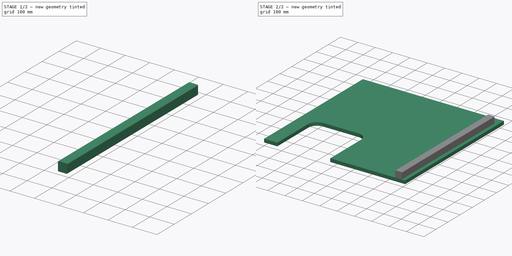
[diagram: build sequence overview — one tinted view per stage of 2, left to right]
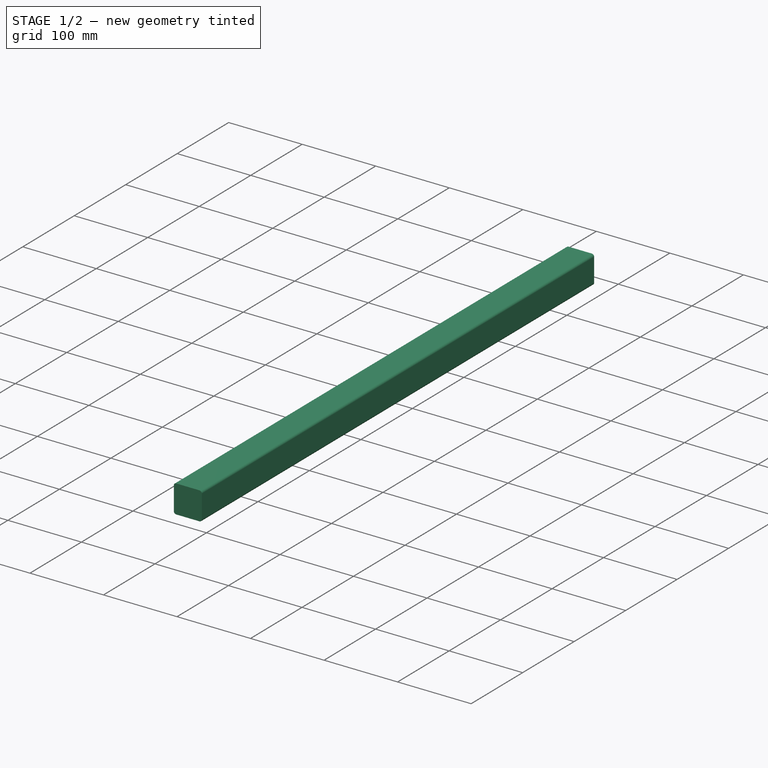
[diagram: stage 1 of 2 — iso view after this stage's code; geometry added in this stage tinted green]
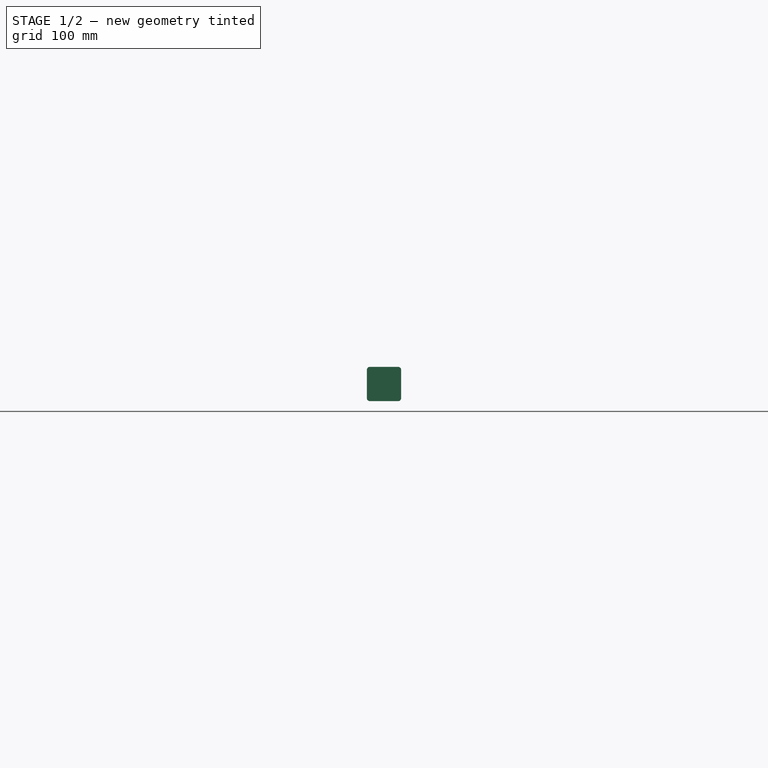
[diagram: stage 1 of 2 — front view after this stage's code; geometry added in this stage tinted green]
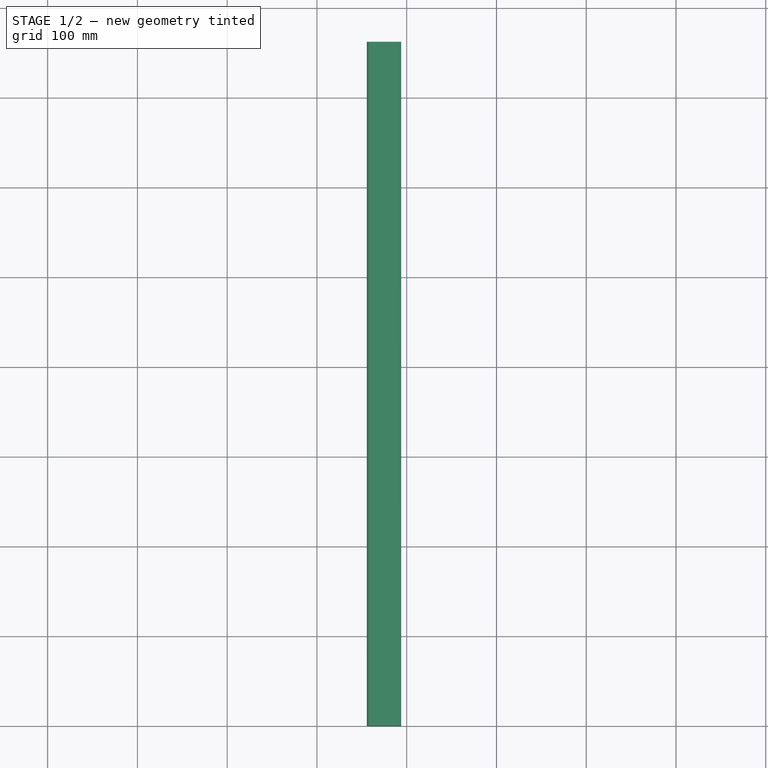
[diagram: stage 1 of 2 — top view after this stage's code; geometry added in this stage tinted green]
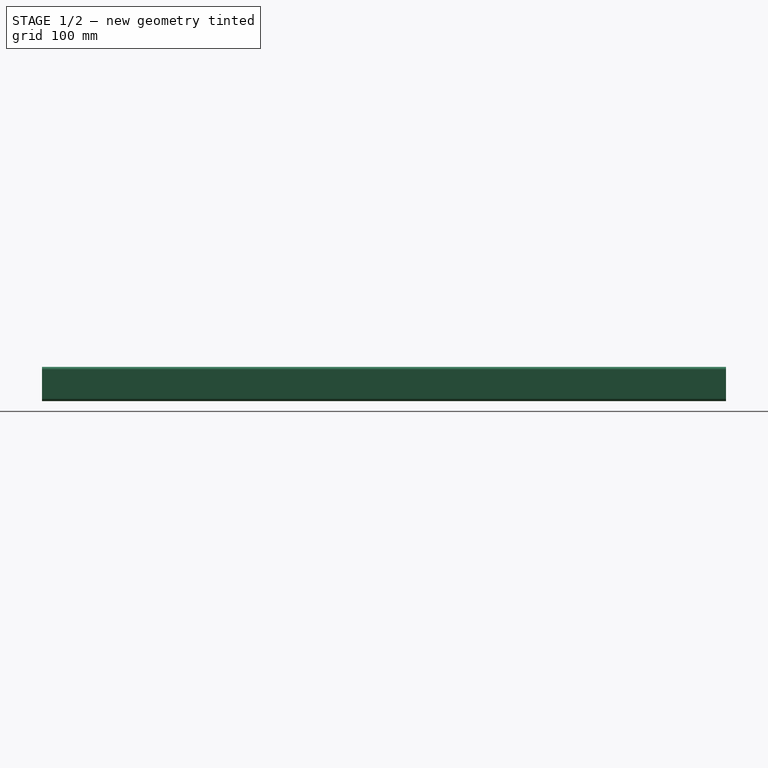
[diagram: stage 1 of 2 — right view after this stage's code; geometry added in this stage tinted green]
FCSTD DOCUMENT  (FreeCAD 0.19R)
Label: Outlet_Wall
License: Creative Commons Attribution
LicenseURL: http://creativecommons.org/licenses/by/4.0/
objects: App::Link×7, Sketcher::SketchObject×2, Part::Extrusion×2, App::LinkGroup×2, Part::Feature×1
note: 5 computed .brp shape members not serialized (recipe doc carries the construction recipe); baked Part::Feature solids carry a one-line shape summary decoded from their .brp

FEATURE [Part::Extrusion] Extrude006  label="IF_A"
  Base = -> Sketch006
  Dir = (0,0,1)
  DirMode = 2
  FaceMakerClass = Part::FaceMakerBullseye
  LengthFwd = 762
  LengthRev = 0
  Placement = pos=(755.65,-4.2e-15,5.8e-15) rot=(-0.57735,-0.57735,-0.57735;2.0944rad)
  Solid = true
  Symmetric = false
FEATURE [Part::Feature] Screw_w_Washer_B
  Placement = pos=(38.1,25.4,-19.05) rot=(0,0,1;0rad)
  shape: bbox 15.88 x 15.88 x 50.8 mm, 35 faces (baked)
FEATURE [App::Link] Link001  label="Screw_w_Washer_B001"
  LinkPlacement = pos=(38.1,736.601,-19.05) rot=(0,0,1;0rad)
  LinkedObject = -> Screw_w_Washer_B
  Placement = pos=(38.1,736.601,-19.05) rot=(0,0,1;0rad)
FEATURE [App::Link] Link002  label="Screw_w_Washer_B002"
  LinkPlacement = pos=(38.1,152.4,-19.05) rot=(0,0,1;0rad)
  LinkedObject = -> Screw_w_Washer_B
  Placement = pos=(38.1,152.4,-19.05) rot=(0,0,1;0rad)
FEATURE [App::Link] Link003  label="Screw_w_Washer_B003"
  LinkPlacement = pos=(38.1,609.601,-19.05) rot=(0,0,1;0rad)
  LinkedObject = -> Screw_w_Washer_B
  Placement = pos=(38.1,609.601,-19.05) rot=(0,0,1;0rad)
FEATURE [App::Link] Link004  label="Screw_w_Washer_B004"
  LinkPlacement = pos=(38.1,304.8,-19.05) rot=(0,0,1;0rad)
  LinkedObject = -> Screw_w_Washer_B
  Placement = pos=(38.1,304.8,-19.05) rot=(0,0,1;0rad)
FEATURE [App::Link] Link005  label="Screw_w_Washer_B005"
  LinkPlacement = pos=(38.1,457.2,-19.05) rot=(0,0,1;0rad)
  LinkedObject = -> Screw_w_Washer_B
  Placement = pos=(38.1,457.2,-19.05) rot=(0,0,1;0rad)
FEATURE [App::LinkGroup] LinkGroup  label="Frame_Screws_A_LinkGroup"
  ElementList = -> [Screw_w_Washer_B,Link001,Link002,Link003,Link004,Link005]
  LinkMode = 0
FEATURE [App::Link] Link006  label="Frame_Screws_A_LinkGroup001"
  LinkedObject = -> LinkGroup
FEATURE [App::LinkGroup] LinkGroup001  label="Frame_Screws_A_LinkGroup_2"
  ElementList = -> [Link006]
  LinkMode = 1
  Placement = pos=(736.6,-9.15527e-05,0) rot=(0,0,1;0rad)
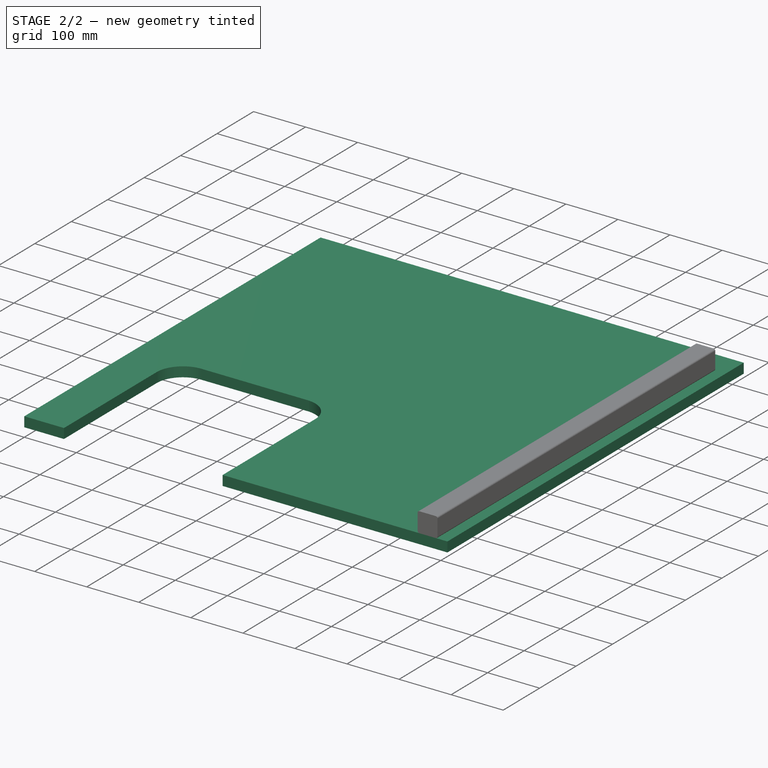
[diagram: stage 2 of 2 — iso view after this stage's code; geometry added in this stage tinted green]
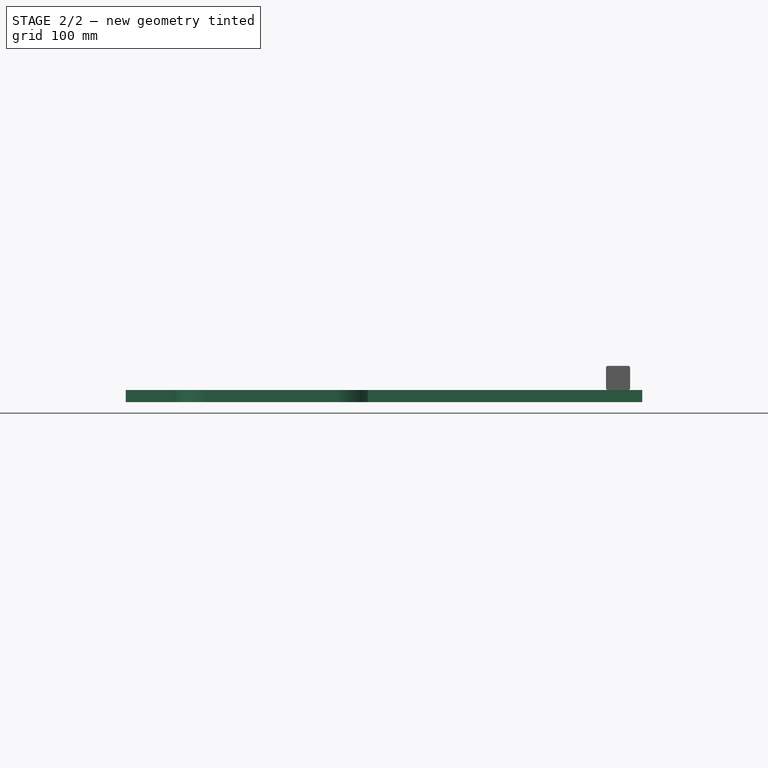
[diagram: stage 2 of 2 — front view after this stage's code; geometry added in this stage tinted green]
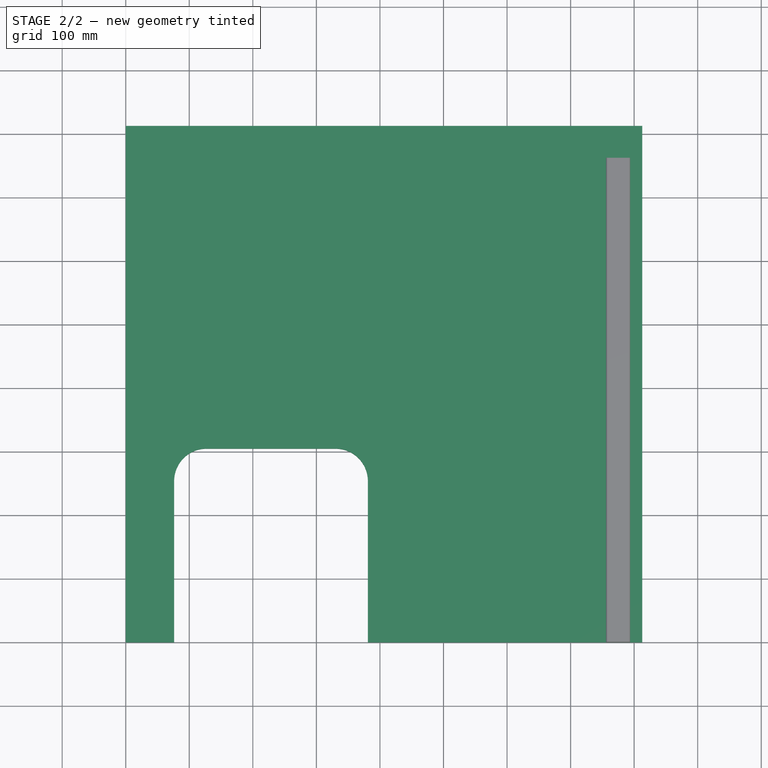
[diagram: stage 2 of 2 — top view after this stage's code; geometry added in this stage tinted green]
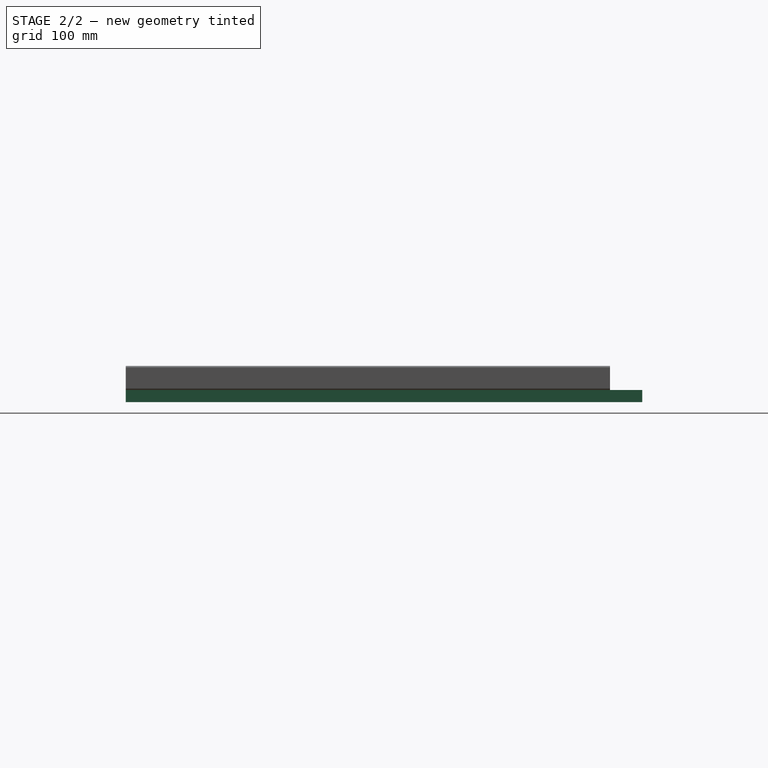
[diagram: stage 2 of 2 — right view after this stage's code; geometry added in this stage tinted green]
FEATURE [Sketcher::SketchObject] Sketch006  label="Sketch_2x2_rail"
  sketch-geometry (8):
    g0: LineSegment StartX=0 StartY=34.925 StartZ=0 EndX=0 EndY=3.175 EndZ=0
    g1: ArcOfCircle CenterX=3.175 CenterY=34.925 CenterZ=0 NormalX=0 NormalY=0 NormalZ=1 AngleXU=0 Radius=3.175 StartAngle=1.5708 EndAngle=3.14159
    g2: LineSegment StartX=3.175 StartY=38.1 StartZ=0 EndX=34.925 EndY=38.1 EndZ=0
    g3: ArcOfCircle CenterX=34.925 CenterY=34.925 CenterZ=0 NormalX=0 NormalY=0 NormalZ=1 AngleXU=0 Radius=3.175 StartAngle=4e-16 EndAngle=1.5708
    g4: LineSegment StartX=38.1 StartY=34.925 StartZ=0 EndX=38.1 EndY=3.175 EndZ=0
    g5: ArcOfCircle CenterX=34.925 CenterY=3.175 CenterZ=0 NormalX=0 NormalY=0 NormalZ=1 AngleXU=0 Radius=3.175 StartAngle=4.71239 EndAngle=6.28319
    g6: LineSegment StartX=34.925 StartY=0 StartZ=0 EndX=3.175 EndY=0 EndZ=0
    g7: ArcOfCircle CenterX=3.175 CenterY=3.175 CenterZ=0 NormalX=0 NormalY=0 NormalZ=1 AngleXU=0 Radius=3.175 StartAngle=3.14159 EndAngle=4.71239
  constraints (22):
    c: Vertical(g0)
    c: Tangent(g0,g1) = -1.5708
    c: Radius(g1) = 3.175
    c: Angle(g1) = 1.5708
    c: Coincident(g2,g1)
    c: Horizontal(g2)
    c: Tangent(g2,g3) = 1.5708
    c: Coincident(g4,g3)
    c: Vertical(g4)
    c: Tangent(g5,g4) = 1.5708
    c: Horizontal(g6)
    c: Tangent(g6,g5) = 1.5708
    c: Tangent(g7,g6) = 1.5708
    c: Tangent(g7,g0) = -1.5708
    c: Equal(g1,g7)
    c: Equal(g7,g3)
    c: Equal(g2,g0)
    c: Equal(g0,g6)
    c: Equal(g6,g4)
    c: PointOnObject(g-1,g0)
    c: PointOnObject(g6,g-1)
    c: DistanceX(g0,g4) = 38.1
FEATURE [App::Link] Link  label="IF_A001"
  LinkPlacement = pos=(19.05,1.929e-13,1.61828e-06) rot=(0.57735,0.57735,0.57735;4.18879rad)
  LinkedObject = -> Extrude006
  Placement = pos=(19.05,1.929e-13,1.61828e-06) rot=(0.57735,0.57735,0.57735;4.18879rad)
FEATURE [Sketcher::SketchObject] Sketch003  label="Sketch_C_Outlet_Wall"
  sketch-geometry (10):
    g0: LineSegment StartX=812.8 StartY=812.8 StartZ=0 EndX=0 EndY=812.8 EndZ=0
    g1: LineSegment StartX=0 StartY=812.8 StartZ=0 EndX=0 EndY=0 EndZ=0
    g2: LineSegment StartX=0 StartY=0 StartZ=0 EndX=431.8 EndY=0 EndZ=0
    g3: LineSegment StartX=812.8 StartY=0 StartZ=0 EndX=812.8 EndY=812.8 EndZ=0
    g4: LineSegment StartX=812.8 StartY=0 StartZ=0 EndX=736.6 EndY=0 EndZ=0
    g5: LineSegment StartX=482.6 StartY=304.8 StartZ=0 EndX=685.8 EndY=304.8 EndZ=0
    g6: LineSegment StartX=431.8 StartY=0 StartZ=0 EndX=431.8 EndY=254 EndZ=0
    g7: LineSegment StartX=736.6 StartY=0 StartZ=0 EndX=736.6 EndY=254 EndZ=0
    g8: ArcOfCircle CenterX=482.6 CenterY=254 CenterZ=0 NormalX=0 NormalY=0 NormalZ=1 AngleXU=0 Radius=50.8 StartAngle=1.5708 EndAngle=3.14159
    g9: ArcOfCircle CenterX=685.8 CenterY=254 CenterZ=0 NormalX=0 NormalY=0 NormalZ=1 AngleXU=0 Radius=50.8 StartAngle=0 EndAngle=1.5708
  constraints (32):
    c: Coincident(g0,g1)
    c: Coincident(g2,g1)
    c: Coincident(g3,g0)
    c: DistanceX(g1) = 0
    c: DistanceY(g1) = 0
    c: Vertical(g0,g1)
    c: Vertical(g0,g3)
    c: Horizontal(g0,g0)
    c: DistanceY(g1,g0) = 812.8
    c: DistanceX(g0,g0) = 812.8
    c: Horizontal(g2)
    c: Coincident(g4,g3)
    c: PointOnObject(g4,g-1)
    c: Horizontal(g4)
    c: Horizontal(g5)
    c: DistanceX(g2,g4) = 304.8
    c: DistanceX(g4,g4) = 76.2
    c: DistanceY(g2,g5) = 304.8
    c: Coincident(g6,g2)
    c: Vertical(g6)
    c: Coincident(g7,g4)
    c: Vertical(g7)
    c: Equal(g6,g7)
    c: Coincident(g8,g5)
    c: Coincident(g8,g6)
    c: Coincident(g9,g5)
    c: Coincident(g9,g7)
    c: Horizontal(g6,g8)
    c: Vertical(g8,g5)
    c: Horizontal(g9,g7)
    c: Vertical(g9,g5)
    c: DistanceX(g6,g8) = 50.8
FEATURE [Part::Extrusion] Extrude003  label="Part_C_Outlet_Wall"
  Base = -> Sketch003
  Dir = (0,0,1)
  DirMode = 2
  FaceMakerClass = Part::FaceMakerBullseye
  LengthFwd = 19.05
  LengthRev = 0
  Placement = pos=(812.8,0,9.95e-14) rot=(0,1,0;3.14159rad)
  Solid = true
  Symmetric = false
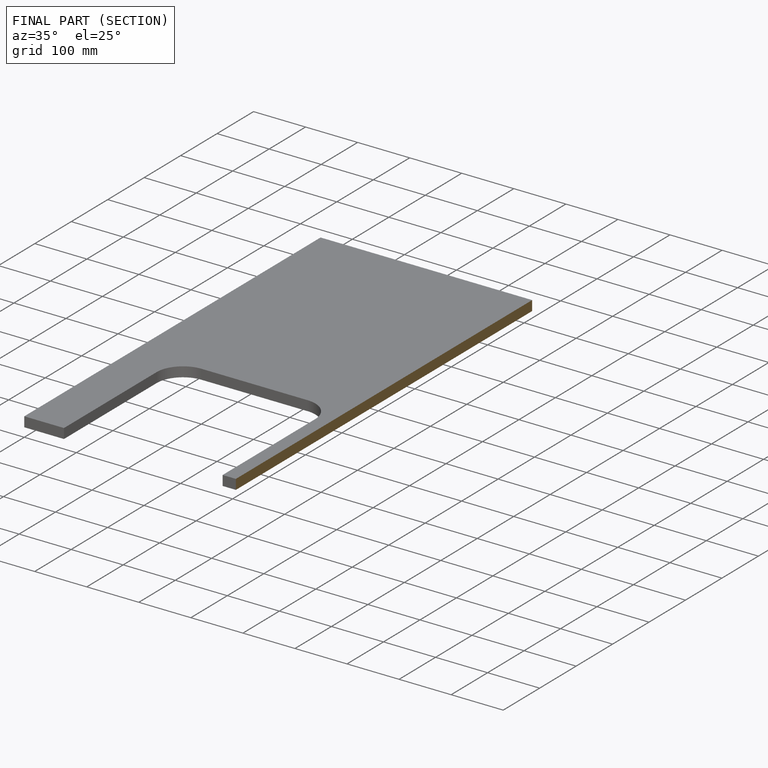
[diagram: finished part — half-section view (interior)]
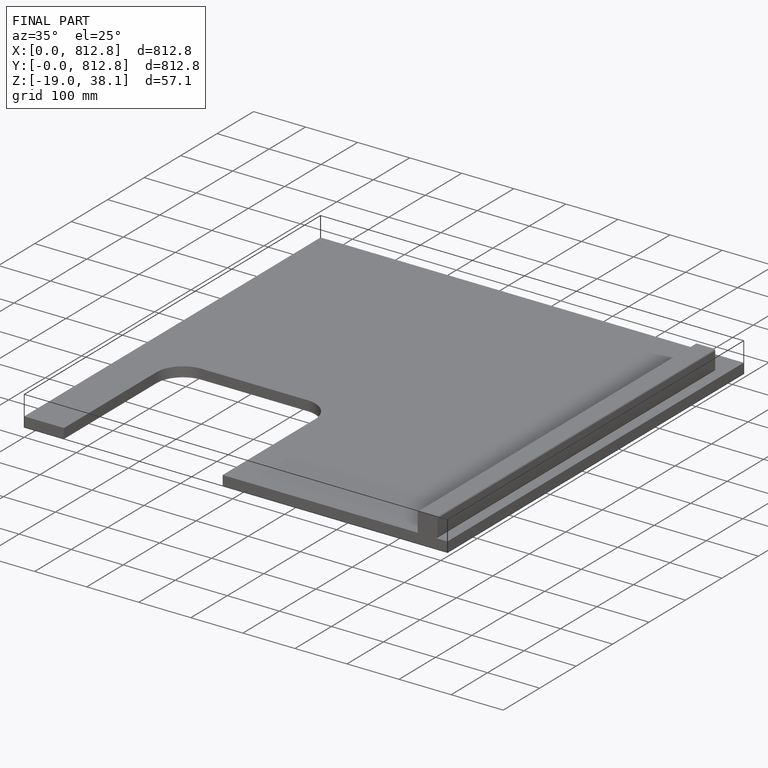
[diagram: finished part — iso view with bounding-box wireframe]
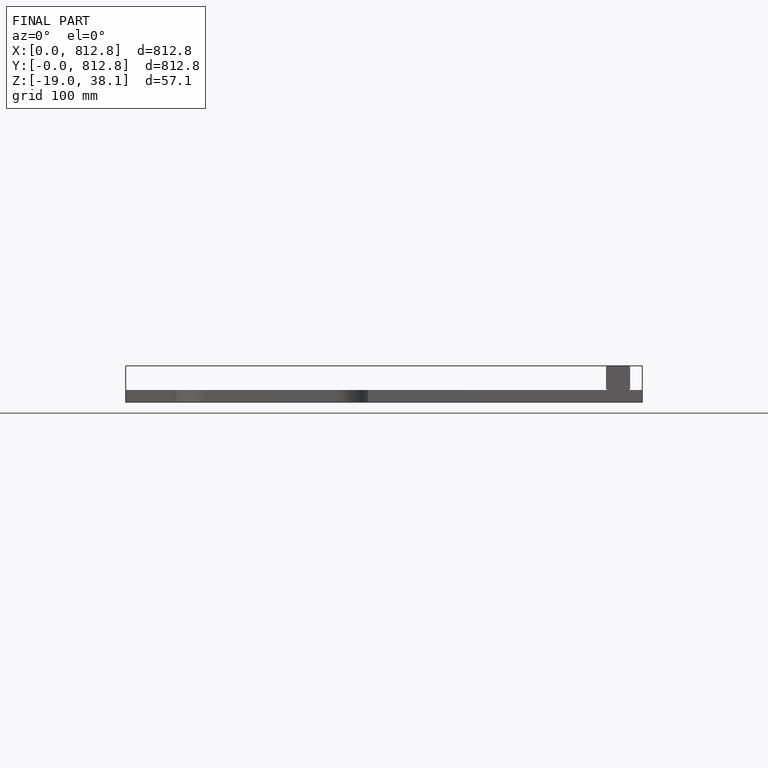
[diagram: finished part — front view with bounding-box wireframe]
